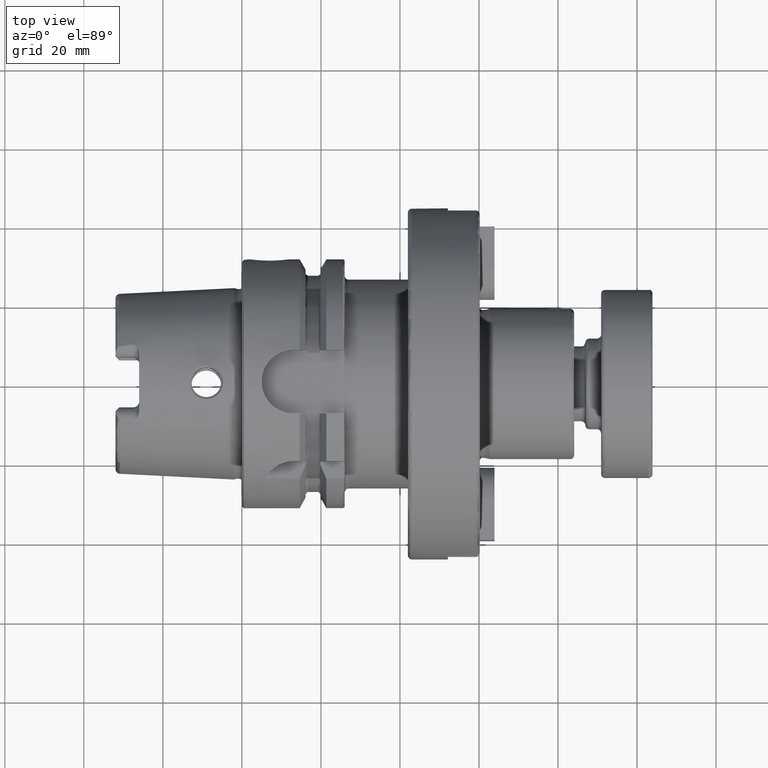
[diagram: clean part render]
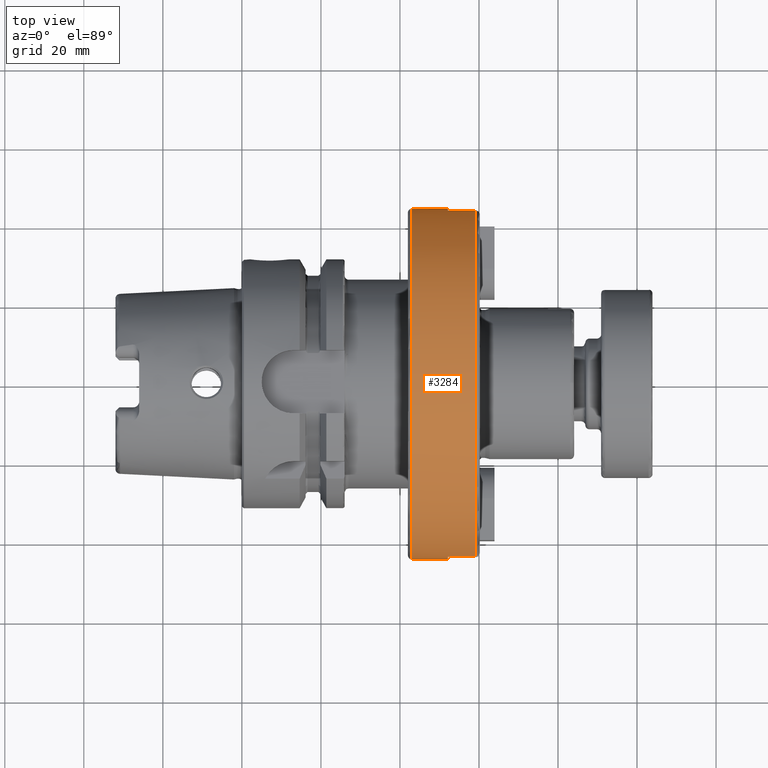
[diagram: same view with one face highlighted and labeled with its STEP entity id]
A machine part, top view. The second image highlights one B-rep face of the part: STEP entity #3284.
In plain terms, the highlighted cylindrical surface (bore or boss wall) has radius 44.45 mm, axis along (1, 0, 0).
Its self-contained STEP definition (entity closure, byte-faithful):
#150=CYLINDRICAL_SURFACE('',#3603,44.45);
#229=CIRCLE('',#3594,44.45);
#231=CIRCLE('',#3596,44.45);
#235=CIRCLE('',#3604,44.45);
#236=CIRCLE('',#3605,44.45);
#237=CIRCLE('',#3606,44.45);
#238=CIRCLE('',#3607,44.45);
#239=CIRCLE('',#3608,44.45);
#449=FACE_OUTER_BOUND('',#651,.T.);
#651=EDGE_LOOP('',(#2203,#2204,#2205,#2206,#2207,#2208,#2209,#2210,#2211,
#2212,#2213,#2214,#2215));
#877=LINE('',#5097,#1076);
#881=LINE('',#5129,#1080);
#883=LINE('',#5133,#1082);
#884=LINE('',#5140,#1083);
#885=LINE('',#5144,#1084);
#1076=VECTOR('',#4028,10.);
#1080=VECTOR('',#4052,10.);
#1082=VECTOR('',#4056,44.45);
#1083=VECTOR('',#4063,10.);
#1084=VECTOR('',#4066,10.);
#1339=VERTEX_POINT('',#5080);
#1342=VERTEX_POINT('',#5095);
#1343=VERTEX_POINT('',#5099);
#1345=VERTEX_POINT('',#5103);
#1349=VERTEX_POINT('',#5117);
#1351=VERTEX_POINT('',#5132);
#1352=VERTEX_POINT('',#5134);
#1353=VERTEX_POINT('',#5137);
#1354=VERTEX_POINT('',#5139);
#1355=VERTEX_POINT('',#5141);
#1356=VERTEX_POINT('',#5143);
#1674=EDGE_CURVE('',#1339,#1342,#877,.T.);
#1675=EDGE_CURVE('',#1342,#1343,#229,.T.);
#1678=EDGE_CURVE('',#1343,#1345,#231,.T.);
#1685=EDGE_CURVE('',#1345,#1349,#881,.T.);
#1687=EDGE_CURVE('',#1343,#1351,#883,.T.);
#1688=EDGE_CURVE('',#1352,#1351,#235,.T.);
#1689=EDGE_CURVE('',#1351,#1352,#236,.T.);
#1690=EDGE_CURVE('',#1353,#1349,#237,.T.);
#1691=EDGE_CURVE('',#1353,#1354,#884,.T.);
#1692=EDGE_CURVE('',#1354,#1355,#238,.T.);
#1693=EDGE_CURVE('',#1355,#1356,#885,.T.);
#1694=EDGE_CURVE('',#1339,#1356,#239,.T.);
#2203=ORIENTED_EDGE('',*,*,#1674,.T.);
#2204=ORIENTED_EDGE('',*,*,#1675,.T.);
#2205=ORIENTED_EDGE('',*,*,#1687,.T.);
#2206=ORIENTED_EDGE('',*,*,#1688,.F.);
#2207=ORIENTED_EDGE('',*,*,#1689,.F.);
#2208=ORIENTED_EDGE('',*,*,#1687,.F.);
#2209=ORIENTED_EDGE('',*,*,#1678,.T.);
#2210=ORIENTED_EDGE('',*,*,#1685,.T.);
#2211=ORIENTED_EDGE('',*,*,#1690,.F.);
#2212=ORIENTED_EDGE('',*,*,#1691,.T.);
#2213=ORIENTED_EDGE('',*,*,#1692,.T.);
#2214=ORIENTED_EDGE('',*,*,#1693,.T.);
#2215=ORIENTED_EDGE('',*,*,#1694,.F.);
#3284=ADVANCED_FACE('',(#449),#150,.T.);
#3594=AXIS2_PLACEMENT_3D('',#5100,#4031,#4032);
#3596=AXIS2_PLACEMENT_3D('',#5105,#4036,#4037);
#3603=AXIS2_PLACEMENT_3D('',#5131,#4054,#4055);
#3604=AXIS2_PLACEMENT_3D('',#5135,#4057,#4058);
#3605=AXIS2_PLACEMENT_3D('',#5136,#4059,#4060);
#3606=AXIS2_PLACEMENT_3D('',#5138,#4061,#4062);
#3607=AXIS2_PLACEMENT_3D('',#5142,#4064,#4065);
#3608=AXIS2_PLACEMENT_3D('',#5145,#4067,#4068);
#4028=DIRECTION('',(-1.,0.,0.));
#4031=DIRECTION('center_axis',(-1.,0.,0.));
#4032=DIRECTION('ref_axis',(0.,1.,0.));
#4036=DIRECTION('center_axis',(-1.,0.,0.));
#4037=DIRECTION('ref_axis',(0.,1.,0.));
#4052=DIRECTION('',(1.,0.,0.));
#4054=DIRECTION('center_axis',(1.,0.,0.));
#4055=DIRECTION('ref_axis',(0.,1.,0.));
#4056=DIRECTION('',(-1.,0.,0.));
#4057=DIRECTION('center_axis',(-1.,0.,0.));
#4058=DIRECTION('ref_axis',(0.,-1.,1.83697019872103E-16));
#4059=DIRECTION('center_axis',(-1.,0.,0.));
#4060=DIRECTION('ref_axis',(0.,-1.,1.83697019872103E-16));
#4061=DIRECTION('center_axis',(1.,0.,0.));
#4062=DIRECTION('ref_axis',(0.,-1.,1.83697019872103E-16));
#4063=DIRECTION('',(-1.,0.,0.));
#4064=DIRECTION('center_axis',(-1.,0.,0.));
#4065=DIRECTION('ref_axis',(0.,1.,0.));
#4066=DIRECTION('',(1.,0.,0.));
#4067=DIRECTION('center_axis',(1.,0.,0.));
#4068=DIRECTION('ref_axis',(0.,-1.,1.83697019872103E-16));
#5080=CARTESIAN_POINT('',(59.2,-43.7360066192605,-7.935));
#5095=CARTESIAN_POINT('',(52.13,-43.7360066192605,-7.935));
#5097=CARTESIAN_POINT('',(51.1,-43.7360066192605,-7.935));
#5099=CARTESIAN_POINT('',(52.13,-44.45,-5.44355502220998E-15));
#5100=CARTESIAN_POINT('Origin',(52.13,0.,0.));
#5103=CARTESIAN_POINT('',(52.13,-43.7360066192605,7.935));
#5105=CARTESIAN_POINT('Origin',(52.13,0.,0.));
#5117=CARTESIAN_POINT('',(59.2,-43.7360066192605,7.935));
#5129=CARTESIAN_POINT('',(51.1,-43.7360066192605,7.935));
#5131=CARTESIAN_POINT('Origin',(51.1,0.,0.));
#5132=CARTESIAN_POINT('',(43.,-44.45,-5.44355502220998E-15));
#5133=CARTESIAN_POINT('',(51.1,-44.45,-5.44355502220998E-15));
#5134=CARTESIAN_POINT('',(43.,-5.44355502220998E-15,44.45));
#5135=CARTESIAN_POINT('Origin',(43.,0.,0.));
#5136=CARTESIAN_POINT('Origin',(43.,0.,0.));
#5137=CARTESIAN_POINT('',(59.2,43.7360066192605,7.935));
#5138=CARTESIAN_POINT('Origin',(59.2,0.,0.));
#5139=CARTESIAN_POINT('',(52.13,43.7360066192605,7.935));
#5140=CARTESIAN_POINT('',(51.1,43.7360066192605,7.935));
#5141=CARTESIAN_POINT('',(52.13,43.7360066192605,-7.935));
#5142=CARTESIAN_POINT('Origin',(52.13,0.,0.));
#5143=CARTESIAN_POINT('',(59.2,43.7360066192605,-7.935));
#5144=CARTESIAN_POINT('',(51.1,43.7360066192605,-7.935));
#5145=CARTESIAN_POINT('Origin',(59.2,0.,0.));